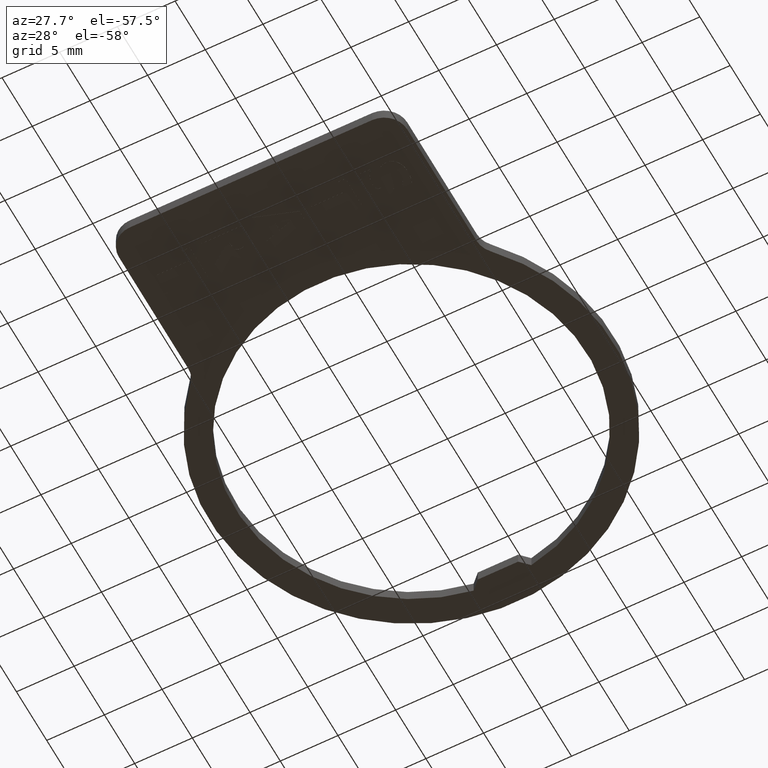
[diagram: clean part render]
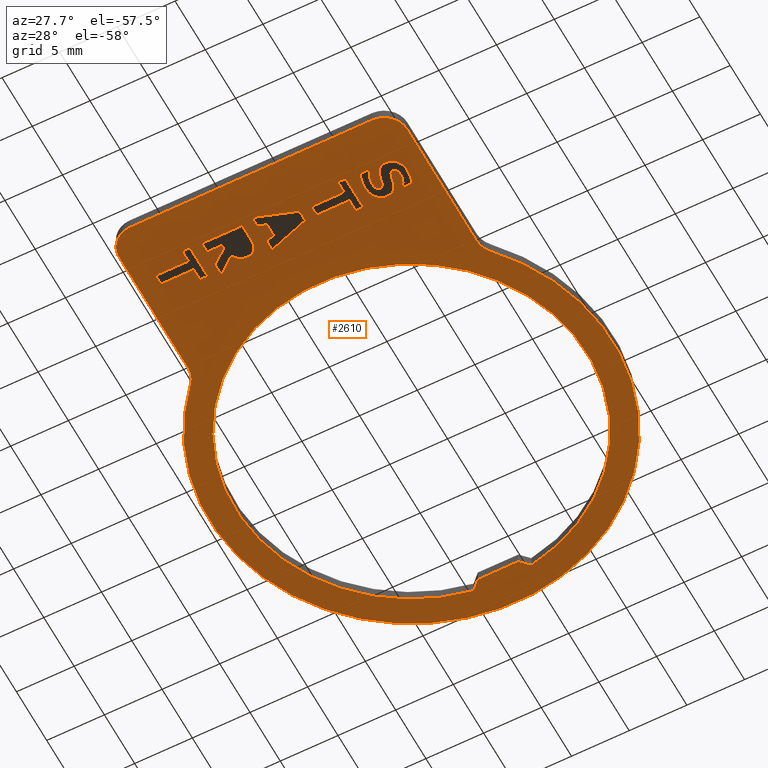
[diagram: same view with one face highlighted and labeled with its STEP entity id]
A machine part, auxiliary view. The second image highlights one B-rep face of the part: STEP entity #2610.
In plain terms, the highlighted planar face has unit normal (0, 0, 1).
Its self-contained STEP definition (entity closure, byte-faithful):
#381=CARTESIAN_POINT('',(-10.179624176161926,-19.040604035403977,0.0));
#382=VERTEX_POINT('',#381);
#389=CARTESIAN_POINT('',(-13.679624116557282,-19.040604035403977,0.0));
#390=VERTEX_POINT('',#389);
#391=CARTESIAN_POINT('',(-13.679624116557282,-19.040604035403977,0.0));
#392=DIRECTION('',(1.0,0.0,0.0));
#393=VECTOR('',#392,3.499999940395355);
#394=LINE('',#391,#393);
#395=EDGE_CURVE('',#390,#382,#394,.T.);
#412=CARTESIAN_POINT('',(-10.179624176161928,-17.633796928081370,0.0));
#413=VERTEX_POINT('',#412);
#420=CARTESIAN_POINT('',(-10.179624176161926,-19.040604035403977,0.0));
#421=DIRECTION('',(0.0,1.0,0.0));
#422=VECTOR('',#421,1.406807107322607);
#423=LINE('',#420,#422);
#424=EDGE_CURVE('',#382,#413,#423,.T.);
#440=CARTESIAN_POINT('',(-10.366820283184692,-16.726179439486138,0.0));
#441=VERTEX_POINT('',#440);
#448=CARTESIAN_POINT('',(-10.179624176161928,-17.633796928081370,0.0));
#449=CARTESIAN_POINT('',(-10.179624176161928,-17.341657548939779,0.0));
#450=CARTESIAN_POINT('',(-10.253368097110290,-16.910539241857045,0.0));
#451=CARTESIAN_POINT('',(-10.366820283184694,-16.726179439486138,0.0));
#452=QUASI_UNIFORM_CURVE('',2,(#448,#449,#450,#451),.UNSPECIFIED.,.F.,.U.);
#453=EDGE_CURVE('',#413,#441,#452,.T.);
#469=CARTESIAN_POINT('',(-11.141131453142496,-16.317751569618288,0.0));
#470=VERTEX_POINT('',#469);
#477=CARTESIAN_POINT('',(-10.366820283184694,-16.726179439486138,0.0));
#478=CARTESIAN_POINT('',(-10.485945078562818,-16.538983332463374,0.0));
#479=CARTESIAN_POINT('',(-10.857500987956490,-16.317751569618288,0.0));
#480=CARTESIAN_POINT('',(-11.141131453142499,-16.317751569618288,0.0));
#481=QUASI_UNIFORM_CURVE('',2,(#477,#478,#479,#480),.UNSPECIFIED.,.F.,.U.);
#482=EDGE_CURVE('',#441,#470,#481,.T.);
#498=CARTESIAN_POINT('',(-12.190564174330731,-16.984283162805408,0.0));
#499=VERTEX_POINT('',#498);
#506=CARTESIAN_POINT('',(-11.141131453142499,-16.317751569618288,0.0));
#507=CARTESIAN_POINT('',(-11.541050409054773,-16.317751569618288,0.0));
#508=CARTESIAN_POINT('',(-12.043076332434008,-16.680798565056378,0.0));
#509=CARTESIAN_POINT('',(-12.190564174330733,-16.984283162805408,0.0));
#510=QUASI_UNIFORM_CURVE('',2,(#506,#507,#508,#509),.UNSPECIFIED.,.F.,.U.);
#511=EDGE_CURVE('',#470,#499,#510,.T.);
#523=CARTESIAN_POINT('',(-13.679624116557283,-15.807216732283468,0.0));
#524=VERTEX_POINT('',#523);
#531=CARTESIAN_POINT('',(-12.190564174330731,-16.984283162805408,0.0));
#532=DIRECTION('',(-0.784500119596252,0.620128665966561,0.0));
#533=VECTOR('',#532,1.898100338076310);
#534=LINE('',#531,#533);
#535=EDGE_CURVE('',#499,#524,#534,.T.);
#613=CARTESIAN_POINT('',(-13.679624116557282,-18.167022202631067,0.0));
#614=VERTEX_POINT('',#613);
#615=CARTESIAN_POINT('',(-13.679624116557282,-18.167022202631067,0.0));
#616=DIRECTION('',(0.0,-1.0,0.0));
#617=VECTOR('',#616,0.873581832772910);
#618=LINE('',#615,#617);
#619=EDGE_CURVE('',#614,#390,#618,.T.);
#637=CARTESIAN_POINT('',(-12.394778109264660,-18.167022202631067,0.0));
#638=VERTEX_POINT('',#637);
#639=CARTESIAN_POINT('',(-12.394778109264660,-18.167022202631067,0.0));
#640=DIRECTION('',(-1.0,0.0,0.0));
#641=VECTOR('',#640,1.284846007292622);
#642=LINE('',#639,#641);
#643=EDGE_CURVE('',#638,#614,#642,.T.);
#661=CARTESIAN_POINT('',(-12.394778109264662,-17.849356081622737,0.0));
#662=VERTEX_POINT('',#661);
#663=CARTESIAN_POINT('',(-12.394778109264662,-17.849356081622737,0.0));
#664=DIRECTION('',(0.0,-1.0,0.0));
#665=VECTOR('',#664,0.317666121008330);
#666=LINE('',#663,#665);
#667=EDGE_CURVE('',#662,#638,#666,.T.);
#685=CARTESIAN_POINT('',(-13.679624116557283,-16.876503586034726,0.0));
#686=VERTEX_POINT('',#685);
#687=CARTESIAN_POINT('',(-13.679624116557283,-16.876503586034726,0.0));
#688=DIRECTION('',(0.797246141356458,-0.603654363102130,0.0));
#689=VECTOR('',#688,1.611605175167793);
#690=LINE('',#687,#689);
#691=EDGE_CURVE('',#686,#662,#690,.T.);
#709=CARTESIAN_POINT('',(-13.679624116557283,-15.807216732283468,0.0));
#710=DIRECTION('',(0.0,-1.0,0.0));
#711=VECTOR('',#710,1.069286853751258);
#712=LINE('',#709,#711);
#713=EDGE_CURVE('',#524,#686,#712,.T.);
#797=CARTESIAN_POINT('',(-1.846156007767628,-16.181608999702689,0.0));
#798=VERTEX_POINT('',#797);
#805=CARTESIAN_POINT('',(-1.179624414580507,-16.181608999702689,0.0));
#806=VERTEX_POINT('',#805);
#807=CARTESIAN_POINT('',(-1.179624414580507,-16.181608999702689,0.0));
#808=DIRECTION('',(-1.0,0.0,0.0));
#809=VECTOR('',#808,0.666531593187121);
#810=LINE('',#807,#809);
#811=EDGE_CURVE('',#806,#798,#810,.T.);
#828=CARTESIAN_POINT('',(-1.846156007767628,-17.216860197631625,0.0));
#829=VERTEX_POINT('',#828);
#836=CARTESIAN_POINT('',(-1.846156007767628,-16.181608999702689,0.0));
#837=DIRECTION('',(0.0,-1.0,0.0));
#838=VECTOR('',#837,1.035251197928936);
#839=LINE('',#836,#838);
#840=EDGE_CURVE('',#798,#829,#839,.T.);
#852=CARTESIAN_POINT('',(-4.679624354975863,-17.216860197631625,0.0));
#853=VERTEX_POINT('',#852);
#860=CARTESIAN_POINT('',(-1.846156007767628,-17.216860197631625,0.0));
#861=DIRECTION('',(-1.0,0.0,0.0));
#862=VECTOR('',#861,2.833468347208235);
#863=LINE('',#860,#862);
#864=EDGE_CURVE('',#829,#853,#863,.T.);
#876=CARTESIAN_POINT('',(-4.679624354975863,-18.096114639708254,0.0));
#877=VERTEX_POINT('',#876);
#884=CARTESIAN_POINT('',(-4.679624354975863,-17.216860197631625,0.0));
#885=DIRECTION('',(0.0,-1.0,0.0));
#886=VECTOR('',#885,0.879254442076629);
#887=LINE('',#884,#886);
#888=EDGE_CURVE('',#853,#877,#887,.T.);
#901=CARTESIAN_POINT('',(-1.179624414580505,-19.131365837637190,0.0));
#902=VERTEX_POINT('',#901);
#903=CARTESIAN_POINT('',(-1.179624414580505,-19.131365837637190,0.0));
#904=DIRECTION('',(0.0,1.0,0.0));
#905=VECTOR('',#904,2.949756837934501);
#906=LINE('',#903,#905);
#907=EDGE_CURVE('',#902,#806,#906,.T.);
#925=CARTESIAN_POINT('',(-1.846156007767625,-19.131365837637190,0.0));
#926=VERTEX_POINT('',#925);
#927=CARTESIAN_POINT('',(-1.846156007767625,-19.131365837637190,0.0));
#928=DIRECTION('',(1.0,0.0,0.0));
#929=VECTOR('',#928,0.666531593187121);
#930=LINE('',#927,#929);
#931=EDGE_CURVE('',#926,#902,#930,.T.);
#949=CARTESIAN_POINT('',(-1.846156007767628,-18.096114639708254,0.0));
#950=VERTEX_POINT('',#949);
#951=CARTESIAN_POINT('',(-1.846156007767628,-18.096114639708254,0.0));
#952=DIRECTION('',(0.0,-1.0,0.0));
#953=VECTOR('',#952,1.035251197928936);
#954=LINE('',#951,#953);
#955=EDGE_CURVE('',#950,#926,#954,.T.);
#973=CARTESIAN_POINT('',(-4.679624354975863,-18.096114639708254,0.0));
#974=DIRECTION('',(1.0,0.0,0.0));
#975=VECTOR('',#974,2.833468347208235);
#976=LINE('',#973,#975);
#977=EDGE_CURVE('',#877,#950,#976,.T.);
#998=CARTESIAN_POINT('',(-5.679624295371212,-18.150004456591766,0.0));
#999=VERTEX_POINT('',#998);
#1006=CARTESIAN_POINT('',(-9.179624235766568,-19.332743496417425,0.0));
#1007=VERTEX_POINT('',#1006);
#1008=CARTESIAN_POINT('',(-9.179624235766568,-19.332743496417425,0.0));
#1009=DIRECTION('',(0.947370089290162,0.320140459670987,0.0));
#1010=VECTOR('',#1009,3.694437875928517);
#1011=LINE('',#1008,#1010);
#1012=EDGE_CURVE('',#1007,#999,#1011,.T.);
#1036=CARTESIAN_POINT('',(-5.679624295371212,-17.191333484263055,0.0));
#1037=VERTEX_POINT('',#1036);
#1044=CARTESIAN_POINT('',(-5.679624295371212,-18.150004456591766,0.0));
#1045=DIRECTION('',(0.0,1.0,0.0));
#1046=VECTOR('',#1045,0.958670972328711);
#1047=LINE('',#1044,#1046);
#1048=EDGE_CURVE('',#999,#1037,#1047,.T.);
#1067=CARTESIAN_POINT('',(-9.179624235766568,-16.008594444437396,0.0));
#1068=VERTEX_POINT('',#1067);
#1075=CARTESIAN_POINT('',(-5.679624295371212,-17.191333484263055,0.0));
#1076=DIRECTION('',(-0.947370089290162,0.320140459670987,0.0));
#1077=VECTOR('',#1076,3.694437875928517);
#1078=LINE('',#1075,#1077);
#1079=EDGE_CURVE('',#1037,#1068,#1078,.T.);
#1098=CARTESIAN_POINT('',(-9.179624235766568,-16.913375628380763,0.0));
#1099=VERTEX_POINT('',#1098);
#1106=CARTESIAN_POINT('',(-9.179624235766568,-16.008594444437396,0.0));
#1107=DIRECTION('',(0.0,-1.0,0.0));
#1108=VECTOR('',#1107,0.904781183943367);
#1109=LINE('',#1106,#1108);
#1110=EDGE_CURVE('',#1068,#1099,#1109,.T.);
#1170=CARTESIAN_POINT('',(-9.179624235766568,-18.453489054340796,0.0));
#1171=VERTEX_POINT('',#1170);
#1172=CARTESIAN_POINT('',(-9.179624235766568,-18.453489054340796,0.0));
#1173=DIRECTION('',(0.0,-1.0,0.0));
#1174=VECTOR('',#1173,0.879254442076629);
#1175=LINE('',#1172,#1174);
#1176=EDGE_CURVE('',#1171,#1007,#1175,.T.);
#1201=CARTESIAN_POINT('',(-8.464875463497826,-18.232257291495706,0.0));
#1202=VERTEX_POINT('',#1201);
#1203=CARTESIAN_POINT('',(-8.464875463497826,-18.232257291495706,0.0));
#1204=DIRECTION('',(-0.955285890691345,-0.295683728071135,0.0));
#1205=VECTOR('',#1204,0.748204049943075);
#1206=LINE('',#1203,#1205);
#1207=EDGE_CURVE('',#1202,#1171,#1206,.T.);
#1232=CARTESIAN_POINT('',(-8.464875463497826,-17.131771086573991,0.0));
#1233=VERTEX_POINT('',#1232);
#1234=CARTESIAN_POINT('',(-8.464875463497826,-17.131771086573991,0.0));
#1235=DIRECTION('',(0.0,-1.0,0.0));
#1236=VECTOR('',#1235,1.100486204921715);
#1237=LINE('',#1234,#1236);
#1238=EDGE_CURVE('',#1233,#1202,#1237,.T.);
#1261=CARTESIAN_POINT('',(-9.179624235766568,-16.913375628380763,0.0));
#1262=DIRECTION('',(0.956351571051338,-0.292218535599022,0.0));
#1263=VECTOR('',#1262,0.747370312240929);
#1264=LINE('',#1261,#1263);
#1265=EDGE_CURVE('',#1099,#1233,#1264,.T.);
#1609=CARTESIAN_POINT('',(3.147360882446741,-16.358878029938268,0.0));
#1610=VERTEX_POINT('',#1609);
#1617=CARTESIAN_POINT('',(3.382774168551128,-17.533108155808350,0.0));
#1618=VERTEX_POINT('',#1617);
#1619=CARTESIAN_POINT('',(3.382774168551128,-17.533108155808346,0.0));
#1620=CARTESIAN_POINT('',(3.382774168551128,-17.221114644103736,0.0));
#1621=CARTESIAN_POINT('',(3.255140459217425,-16.602800229998238,0.0));
#1622=CARTESIAN_POINT('',(3.147360882446741,-16.358878029938268,0.0));
#1623=QUASI_UNIFORM_CURVE('',2,(#1619,#1620,#1621,#1622),.UNSPECIFIED.,.F.,.U.);
#1624=EDGE_CURVE('',#1618,#1610,#1623,.T.);
#1641=CARTESIAN_POINT('',(2.347522970622193,-16.358878029938268,0.0));
#1642=VERTEX_POINT('',#1641);
#1649=CARTESIAN_POINT('',(3.147360882446741,-16.358878029938268,0.0));
#1650=DIRECTION('',(-1.0,0.0,0.0));
#1651=VECTOR('',#1650,0.799837911824548);
#1652=LINE('',#1649,#1651);
#1653=EDGE_CURVE('',#1610,#1642,#1652,.T.);
#1665=CARTESIAN_POINT('',(2.347522970622193,-16.435458255538489,0.0));
#1666=VERTEX_POINT('',#1665);
#1673=CARTESIAN_POINT('',(2.347522970622193,-16.358878029938268,0.0));
#1674=DIRECTION('',(0.0,-1.0,0.0));
#1675=VECTOR('',#1674,0.076580225600221);
#1676=LINE('',#1673,#1675);
#1677=EDGE_CURVE('',#1642,#1666,#1676,.T.);
#1693=CARTESIAN_POINT('',(2.744605621882608,-17.487727281378586,0.0));
#1694=VERTEX_POINT('',#1693);
#1701=CARTESIAN_POINT('',(2.347522970622193,-16.435458255538489,0.0));
#1702=CARTESIAN_POINT('',(2.514864945081938,-16.631163276516837,0.0));
#1703=CARTESIAN_POINT('',(2.744605621882608,-17.192751597585133,0.0));
#1704=CARTESIAN_POINT('',(2.744605621882608,-17.487727281378586,0.0));
#1705=QUASI_UNIFORM_CURVE('',2,(#1701,#1702,#1703,#1704),.UNSPECIFIED.,.F.,.U.);
#1706=EDGE_CURVE('',#1666,#1694,#1705,.T.);
#1722=CARTESIAN_POINT('',(2.665189091630524,-17.887646237290859,0.0));
#1723=VERTEX_POINT('',#1722);
#1730=CARTESIAN_POINT('',(2.744605621882608,-17.487727281378586,0.0));
#1731=CARTESIAN_POINT('',(2.744605621882608,-17.604015772104848,0.0));
#1732=CARTESIAN_POINT('',(2.710569966060286,-17.785539269823893,0.0));
#1733=CARTESIAN_POINT('',(2.665189091630524,-17.887646237290859,0.0));
#1734=QUASI_UNIFORM_CURVE('',2,(#1730,#1731,#1732,#1733),.UNSPECIFIED.,.F.,.U.);
#1735=EDGE_CURVE('',#1694,#1723,#1734,.T.);
#1751=CARTESIAN_POINT('',(2.390067540400096,-18.089023867572923,0.0));
#1752=VERTEX_POINT('',#1751);
#1759=CARTESIAN_POINT('',(2.665189091630524,-17.887646237290859,0.0));
#1760=CARTESIAN_POINT('',(2.628317131156344,-17.969899072194799,0.0));
#1761=CARTESIAN_POINT('',(2.480829289259618,-18.089023867572923,0.0));
#1762=CARTESIAN_POINT('',(2.390067540400096,-18.089023867572923,0.0));
#1763=QUASI_UNIFORM_CURVE('',2,(#1759,#1760,#1761,#1762),.UNSPECIFIED.,.F.,.U.);
#1764=EDGE_CURVE('',#1723,#1752,#1763,.T.);
#1780=CARTESIAN_POINT('',(2.035529458917585,-17.626706209319732,0.0));
#1781=VERTEX_POINT('',#1780);
#1788=CARTESIAN_POINT('',(2.390067540400096,-18.089023867572923,0.0));
#1789=CARTESIAN_POINT('',(2.253924917110810,-18.089023867572923,0.0));
#1790=CARTESIAN_POINT('',(2.097928161258507,-17.898991455898297,0.0));
#1791=CARTESIAN_POINT('',(2.035529458917584,-17.626706209319728,0.0));
#1792=QUASI_UNIFORM_CURVE('',2,(#1788,#1789,#1790,#1791),.UNSPECIFIED.,.F.,.U.);
#1793=EDGE_CURVE('',#1752,#1781,#1792,.T.);
#1809=CARTESIAN_POINT('',(1.854005961198537,-16.937484178917725,0.0));
#1810=VERTEX_POINT('',#1809);
#1817=CARTESIAN_POINT('',(2.035529458917584,-17.626706209319728,0.0));
#1818=CARTESIAN_POINT('',(1.995821193791543,-17.450855320904402,0.0));
#1819=CARTESIAN_POINT('',(1.919240968191320,-17.124680285940492,0.0));
#1820=CARTESIAN_POINT('',(1.854005961198537,-16.937484178917725,0.0));
#1821=QUASI_UNIFORM_CURVE('',2,(#1817,#1818,#1819,#1820),.UNSPECIFIED.,.F.,.U.);
#1822=EDGE_CURVE('',#1781,#1810,#1821,.T.);
#1838=CARTESIAN_POINT('',(0.915189121432847,-16.219899101997122,0.0));
#1839=VERTEX_POINT('',#1838);
#1846=CARTESIAN_POINT('',(1.854005961198537,-16.937484178917725,0.0));
#1847=CARTESIAN_POINT('',(1.720699642561114,-16.574437183479635,0.0));
#1848=CARTESIAN_POINT('',(1.278236116870939,-16.219899101997122,0.0));
#1849=CARTESIAN_POINT('',(0.915189121432847,-16.219899101997122,0.0));
#1850=QUASI_UNIFORM_CURVE('',2,(#1846,#1847,#1848,#1849),.UNSPECIFIED.,.F.,.U.);
#1851=EDGE_CURVE('',#1810,#1839,#1850,.T.);
#1867=CARTESIAN_POINT('',(-0.242023176526072,-17.737322090742275,0.0));
#1868=VERTEX_POINT('',#1867);
#1875=CARTESIAN_POINT('',(0.915189121432847,-16.219899101997122,0.0));
#1876=CARTESIAN_POINT('',(0.393309065490590,-16.219899101997122,0.0));
#1877=CARTESIAN_POINT('',(-0.242023176526072,-17.039591146384691,0.0));
#1878=CARTESIAN_POINT('',(-0.242023176526072,-17.737322090742275,0.0));
#1879=QUASI_UNIFORM_CURVE('',2,(#1875,#1876,#1877,#1878),.UNSPECIFIED.,.F.,.U.);
#1880=EDGE_CURVE('',#1839,#1868,#1879,.T.);
#1897=CARTESIAN_POINT('',(2.282287963629412,-18.988132442212574,0.0));
#1898=VERTEX_POINT('',#1897);
#1899=CARTESIAN_POINT('',(2.282287963629412,-18.988132442212574,0.0));
#1900=CARTESIAN_POINT('',(2.772968668401208,-18.988132442212574,0.0));
#1901=CARTESIAN_POINT('',(3.382774168551128,-18.157095179217567,0.0));
#1902=CARTESIAN_POINT('',(3.382774168551128,-17.533108155808346,0.0));
#1903=QUASI_UNIFORM_CURVE('',2,(#1899,#1900,#1901,#1902),.UNSPECIFIED.,.F.,.U.);
#1904=EDGE_CURVE('',#1898,#1618,#1903,.T.);
#1926=CARTESIAN_POINT('',(1.292417640130239,-18.230839100165927,0.0));
#1927=VERTEX_POINT('',#1926);
#1928=CARTESIAN_POINT('',(1.292417640130239,-18.230839100165927,0.0));
#1929=CARTESIAN_POINT('',(1.434232872723245,-18.636430665381923,0.0));
#1930=CARTESIAN_POINT('',(1.919240968191320,-18.988132442212574,0.0));
#1931=CARTESIAN_POINT('',(2.282287963629412,-18.988132442212574,0.0));
#1932=QUASI_UNIFORM_CURVE('',2,(#1928,#1929,#1930,#1931),.UNSPECIFIED.,.F.,.U.);
#1933=EDGE_CURVE('',#1927,#1898,#1932,.T.);
#1955=CARTESIAN_POINT('',(1.099548923803753,-17.467873148815563,0.0));
#1956=VERTEX_POINT('',#1955);
#1957=CARTESIAN_POINT('',(1.099548923803753,-17.467873148815563,0.0));
#1958=CARTESIAN_POINT('',(1.147766102885375,-17.646560341882747,0.0));
#1959=CARTESIAN_POINT('',(1.230018937789317,-18.052151907098743,0.0));
#1960=CARTESIAN_POINT('',(1.292417640130239,-18.230839100165927,0.0));
#1961=QUASI_UNIFORM_CURVE('',2,(#1957,#1958,#1959,#1960),.UNSPECIFIED.,.F.,.U.);
#1962=EDGE_CURVE('',#1956,#1927,#1961,.T.);
#1984=CARTESIAN_POINT('',(0.764864974884261,-17.119007676636773,0.0));
#1985=VERTEX_POINT('',#1984);
#1986=CARTESIAN_POINT('',(0.764864974884261,-17.119007676636773,0.0));
#1987=CARTESIAN_POINT('',(0.898171293521686,-17.119007676636773,0.0));
#1988=CARTESIAN_POINT('',(1.062676963329572,-17.326057916222560,0.0));
#1989=CARTESIAN_POINT('',(1.099548923803753,-17.467873148815563,0.0));
#1990=QUASI_UNIFORM_CURVE('',2,(#1986,#1987,#1988,#1989),.UNSPECIFIED.,.F.,.U.);
#1991=EDGE_CURVE('',#1985,#1956,#1990,.T.);
#2013=CARTESIAN_POINT('',(0.464216681787093,-17.337403134830002,0.0));
#2014=VERTEX_POINT('',#2013);
#2015=CARTESIAN_POINT('',(0.464216681787093,-17.337403134830002,0.0));
#2016=CARTESIAN_POINT('',(0.503924946913132,-17.246641385970477,0.0));
#2017=CARTESIAN_POINT('',(0.648576484157999,-17.119007676636773,0.0));
#2018=CARTESIAN_POINT('',(0.764864974884261,-17.119007676636773,0.0));
#2019=QUASI_UNIFORM_CURVE('',2,(#2015,#2016,#2017,#2018),.UNSPECIFIED.,.F.,.U.);
#2020=EDGE_CURVE('',#2014,#1985,#2019,.T.);
#2042=CARTESIAN_POINT('',(0.396145370142449,-17.734485786090413,0.0));
#2043=VERTEX_POINT('',#2042);
#2044=CARTESIAN_POINT('',(0.396145370142449,-17.734485786090413,0.0));
#2045=CARTESIAN_POINT('',(0.396145370142449,-17.657905560490189,0.0));
#2046=CARTESIAN_POINT('',(0.430181025964771,-17.411147055778361,0.0));
#2047=CARTESIAN_POINT('',(0.464216681787093,-17.337403134830002,0.0));
#2048=QUASI_UNIFORM_CURVE('',2,(#2044,#2045,#2046,#2047),.UNSPECIFIED.,.F.,.U.);
#2049=EDGE_CURVE('',#2043,#2014,#2048,.T.);
#2071=CARTESIAN_POINT('',(0.861299333047505,-18.928570044523511,0.0));
#2072=VERTEX_POINT('',#2071);
#2073=CARTESIAN_POINT('',(0.861299333047505,-18.928570044523511,0.0));
#2074=CARTESIAN_POINT('',(0.637231265550557,-18.664793711900522,0.0));
#2075=CARTESIAN_POINT('',(0.396145370142449,-18.032297774535721,0.0));
#2076=CARTESIAN_POINT('',(0.396145370142449,-17.734485786090413,0.0));
#2077=QUASI_UNIFORM_CURVE('',2,(#2073,#2074,#2075,#2076),.UNSPECIFIED.,.F.,.U.);
#2078=EDGE_CURVE('',#2072,#2043,#2077,.T.);
#2096=CARTESIAN_POINT('',(0.861299333047505,-19.007986574775593,0.0));
#2097=VERTEX_POINT('',#2096);
#2098=CARTESIAN_POINT('',(0.861299333047505,-19.007986574775593,0.0));
#2099=DIRECTION('',(0.0,1.0,0.0));
#2100=VECTOR('',#2099,0.079416530252082);
#2101=LINE('',#2098,#2100);
#2102=EDGE_CURVE('',#2097,#2072,#2101,.T.);
#2120=CARTESIAN_POINT('',(0.027425765400637,-19.007986574775593,0.0));
#2121=VERTEX_POINT('',#2120);
#2122=CARTESIAN_POINT('',(0.027425765400637,-19.007986574775593,0.0));
#2123=DIRECTION('',(1.0,0.0,0.0));
#2124=VECTOR('',#2123,0.833873567646868);
#2125=LINE('',#2122,#2124);
#2126=EDGE_CURVE('',#2121,#2097,#2125,.T.);
#2148=CARTESIAN_POINT('',(-0.242023176526072,-17.737322090742275,0.0));
#2149=CARTESIAN_POINT('',(-0.242023176526072,-18.140077351306406,0.0));
#2150=CARTESIAN_POINT('',(-0.086026420673766,-18.747046546804466,0.0));
#2151=CARTESIAN_POINT('',(0.027425765400637,-19.007986574775593,0.0));
#2152=QUASI_UNIFORM_CURVE('',2,(#2148,#2149,#2150,#2151),.UNSPECIFIED.,.F.,.U.);
#2153=EDGE_CURVE('',#1868,#2121,#2152,.T.);
#2174=CARTESIAN_POINT('',(-15.346155650139757,-18.096114639708254,0.0));
#2175=VERTEX_POINT('',#2174);
#2182=CARTESIAN_POINT('',(-18.179623997347992,-18.096114639708254,0.0));
#2183=VERTEX_POINT('',#2182);
#2184=CARTESIAN_POINT('',(-18.179623997347992,-18.096114639708254,0.0));
#2185=DIRECTION('',(1.0,0.0,0.0));
#2186=VECTOR('',#2185,2.833468347208235);
#2187=LINE('',#2184,#2186);
#2188=EDGE_CURVE('',#2183,#2175,#2187,.T.);
#2212=CARTESIAN_POINT('',(-15.346155650139757,-19.131365837637190,0.0));
#2213=VERTEX_POINT('',#2212);
#2220=CARTESIAN_POINT('',(-15.346155650139757,-18.096114639708254,0.0));
#2221=DIRECTION('',(0.0,-1.0,0.0));
#2222=VECTOR('',#2221,1.035251197928936);
#2223=LINE('',#2220,#2222);
#2224=EDGE_CURVE('',#2175,#2213,#2223,.T.);
#2243=CARTESIAN_POINT('',(-14.679624056952637,-19.131365837637190,0.0));
#2244=VERTEX_POINT('',#2243);
#2251=CARTESIAN_POINT('',(-15.346155650139757,-19.131365837637190,0.0));
#2252=DIRECTION('',(1.0,0.0,0.0));
#2253=VECTOR('',#2252,0.666531593187120);
#2254=LINE('',#2251,#2253);
#2255=EDGE_CURVE('',#2213,#2244,#2254,.T.);
#2274=CARTESIAN_POINT('',(-14.679624056952637,-16.181608999702689,0.0));
#2275=VERTEX_POINT('',#2274);
#2282=CARTESIAN_POINT('',(-14.679624056952637,-19.131365837637190,0.0));
#2283=DIRECTION('',(0.0,1.0,0.0));
#2284=VECTOR('',#2283,2.949756837934501);
#2285=LINE('',#2282,#2284);
#2286=EDGE_CURVE('',#2244,#2275,#2285,.T.);
#2306=CARTESIAN_POINT('',(-18.179623997347992,-17.216860197631625,0.0));
#2307=VERTEX_POINT('',#2306);
#2308=CARTESIAN_POINT('',(-18.179623997347992,-17.216860197631625,0.0));
#2309=DIRECTION('',(0.0,-1.0,0.0));
#2310=VECTOR('',#2309,0.879254442076629);
#2311=LINE('',#2308,#2310);
#2312=EDGE_CURVE('',#2307,#2183,#2311,.T.);
#2337=CARTESIAN_POINT('',(-15.346155650139757,-17.216860197631625,0.0));
#2338=VERTEX_POINT('',#2337);
#2339=CARTESIAN_POINT('',(-15.346155650139757,-17.216860197631625,0.0));
#2340=DIRECTION('',(-1.0,0.0,0.0));
#2341=VECTOR('',#2340,2.833468347208235);
#2342=LINE('',#2339,#2341);
#2343=EDGE_CURVE('',#2338,#2307,#2342,.T.);
#2368=CARTESIAN_POINT('',(-15.346155650139757,-16.181608999702689,0.0));
#2369=VERTEX_POINT('',#2368);
#2370=CARTESIAN_POINT('',(-15.346155650139757,-16.181608999702689,0.0));
#2371=DIRECTION('',(0.0,-1.0,0.0));
#2372=VECTOR('',#2371,1.035251197928936);
#2373=LINE('',#2370,#2372);
#2374=EDGE_CURVE('',#2369,#2338,#2373,.T.);
#2397=CARTESIAN_POINT('',(-14.679624056952637,-16.181608999702689,0.0));
#2398=DIRECTION('',(-1.0,0.0,0.0));
#2399=VECTOR('',#2398,0.666531593187120);
#2400=LINE('',#2397,#2399);
#2401=EDGE_CURVE('',#2275,#2369,#2400,.T.);
#2434=CARTESIAN_POINT('',(-7.398424810307674,-2.851746310758943,0.0));
#2435=DIRECTION('',(0.0,0.0,1.0));
#2436=DIRECTION('',(1.0,0.0,0.0));
#2437=AXIS2_PLACEMENT_3D('',#2434,#2435,#2436);
#2438=PLANE('',#2437);
#2439=CARTESIAN_POINT('',(-17.898424810307670,-22.893851612925708,0.0));
#2440=VERTEX_POINT('',#2439);
#2441=CARTESIAN_POINT('',(-19.898424810307670,-20.893851612925708,0.0));
#2442=VERTEX_POINT('',#2441);
#2443=CARTESIAN_POINT('',(-17.898424810307670,-20.893851612925708,0.0));
#2444=DIRECTION('',(0.0,0.0,-1.0));
#2445=DIRECTION('',(1.0,0.0,0.0));
#2446=AXIS2_PLACEMENT_3D('',#2443,#2444,#2445);
#2447=CIRCLE('',#2446,1.999999999999997);
#2448=EDGE_CURVE('',#2440,#2442,#2447,.T.);
#2449=ORIENTED_EDGE('',*,*,#2448,.T.);
#2450=CARTESIAN_POINT('',(-19.898424810307670,-9.432256423331003,0.0));
#2451=VERTEX_POINT('',#2450);
#2452=CARTESIAN_POINT('',(-19.898424810307670,-20.893851612925708,0.0));
#2453=DIRECTION('',(0.0,1.0,0.0));
#2454=VECTOR('',#2453,11.461595189594705);
#2455=LINE('',#2452,#2454);
#2456=EDGE_CURVE('',#2442,#2451,#2455,.T.);
#2457=ORIENTED_EDGE('',*,*,#2456,.T.);
#2458=CARTESIAN_POINT('',(-20.411245323128185,-8.094984135084308,0.0));
#2459=VERTEX_POINT('',#2458);
#2460=CARTESIAN_POINT('',(-21.898424810307667,-9.432256423331003,0.0));
#2461=DIRECTION('',(0.0,0.0,1.0));
#2462=DIRECTION('',(1.0,0.0,0.0));
#2463=AXIS2_PLACEMENT_3D('',#2460,#2461,#2462);
#2464=CIRCLE('',#2463,2.000000000000042);
#2465=EDGE_CURVE('',#2451,#2459,#2464,.T.);
#2466=ORIENTED_EDGE('',*,*,#2465,.T.);
#2467=CARTESIAN_POINT('',(5.614395702512835,-8.094984135084314,0.0));
#2468=VERTEX_POINT('',#2467);
#2469=CARTESIAN_POINT('',(-7.398424810307668,3.606148387074293,0.0));
#2470=DIRECTION('',(0.0,0.0,-1.0));
#2471=DIRECTION('',(-0.743589743589743,0.668636144123349,0.0));
#2472=AXIS2_PLACEMENT_3D('',#2469,#2470,#2471);
#2473=CIRCLE('',#2472,17.500000000000004);
#2474=EDGE_CURVE('',#2459,#2468,#2473,.T.);
#2475=ORIENTED_EDGE('',*,*,#2474,.T.);
#2476=CARTESIAN_POINT('',(5.101575189692324,-9.432256423331014,0.0));
#2477=VERTEX_POINT('',#2476);
#2478=CARTESIAN_POINT('',(7.101575189692322,-9.432256423331012,0.0));
#2479=DIRECTION('',(0.0,0.0,1.000000000000000));
#2480=DIRECTION('',(-0.743589743589743,0.668636144123349,0.0));
#2481=AXIS2_PLACEMENT_3D('',#2478,#2479,#2480);
#2482=CIRCLE('',#2481,1.999999999999971);
#2483=EDGE_CURVE('',#2468,#2477,#2482,.T.);
#2484=ORIENTED_EDGE('',*,*,#2483,.T.);
#2485=CARTESIAN_POINT('',(5.101575189692328,-20.893851612925705,0.0));
#2486=VERTEX_POINT('',#2485);
#2487=CARTESIAN_POINT('',(5.101575189692324,-9.432256423331014,0.0));
#2488=DIRECTION('',(0.0,-1.0,0.0));
#2489=VECTOR('',#2488,11.461595189594691);
#2490=LINE('',#2487,#2489);
#2491=EDGE_CURVE('',#2477,#2486,#2490,.T.);
#2492=ORIENTED_EDGE('',*,*,#2491,.T.);
#2493=CARTESIAN_POINT('',(3.101575189692329,-22.893851612925708,0.0));
#2494=VERTEX_POINT('',#2493);
#2495=CARTESIAN_POINT('',(3.101575189692329,-20.893851612925705,0.0));
#2496=DIRECTION('',(0.0,0.0,-1.0));
#2497=DIRECTION('',(0.0,1.0,0.0));
#2498=AXIS2_PLACEMENT_3D('',#2495,#2496,#2497);
#2499=CIRCLE('',#2498,2.000000000000004);
#2500=EDGE_CURVE('',#2486,#2494,#2499,.T.);
#2501=ORIENTED_EDGE('',*,*,#2500,.T.);
#2502=CARTESIAN_POINT('',(3.101575189692329,-22.893851612925708,0.0));
#2503=DIRECTION('',(-1.0,0.0,0.0));
#2504=VECTOR('',#2503,21.0);
#2505=LINE('',#2502,#2504);
#2506=EDGE_CURVE('',#2494,#2440,#2505,.T.);
#2507=ORIENTED_EDGE('',*,*,#2506,.T.);
#2508=EDGE_LOOP('',(#2449,#2457,#2466,#2475,#2484,#2492,#2501,#2507));
#2509=FACE_OUTER_BOUND('',#2508,.T.);
#2510=CARTESIAN_POINT('',(-9.148424810307672,17.899834770404681,0.0));
#2511=VERTEX_POINT('',#2510);
#2512=CARTESIAN_POINT('',(-9.898424810307674,18.649834770404677,0.0));
#2513=VERTEX_POINT('',#2512);
#2514=CARTESIAN_POINT('',(-9.148424810307672,17.899834770404681,0.0));
#2515=DIRECTION('',(-0.707106781186550,0.707106781186545,0.0));
#2516=VECTOR('',#2515,1.060660171779820);
#2517=LINE('',#2514,#2516);
#2518=EDGE_CURVE('',#2511,#2513,#2517,.T.);
#2519=ORIENTED_EDGE('',*,*,#2518,.T.);
#2520=CARTESIAN_POINT('',(-4.898424810307673,18.649834770404681,0.0));
#2521=VERTEX_POINT('',#2520);
#2522=CARTESIAN_POINT('',(-7.398424810307668,3.606148387074293,0.0));
#2523=DIRECTION('',(0.0,0.0,1.000000000000000));
#2524=DIRECTION('',(-0.163934426229508,0.986471238251173,0.0));
#2525=AXIS2_PLACEMENT_3D('',#2522,#2523,#2524);
#2526=CIRCLE('',#2525,15.250000000000000);
#2527=EDGE_CURVE('',#2513,#2521,#2526,.T.);
#2528=ORIENTED_EDGE('',*,*,#2527,.T.);
#2529=CARTESIAN_POINT('',(-5.648424810307672,17.899834770404681,0.0));
#2530=VERTEX_POINT('',#2529);
#2531=CARTESIAN_POINT('',(-4.898424810307673,18.649834770404681,0.0));
#2532=DIRECTION('',(-0.707106781186547,-0.707106781186548,0.0));
#2533=VECTOR('',#2532,1.060660171779821);
#2534=LINE('',#2531,#2533);
#2535=EDGE_CURVE('',#2521,#2530,#2534,.T.);
#2536=ORIENTED_EDGE('',*,*,#2535,.T.);
#2537=CARTESIAN_POINT('',(-5.648424810307672,17.899834770404681,0.0));
#2538=DIRECTION('',(-1.0,0.0,0.0));
#2539=VECTOR('',#2538,3.500000000000000);
#2540=LINE('',#2537,#2539);
#2541=EDGE_CURVE('',#2530,#2511,#2540,.T.);
#2542=ORIENTED_EDGE('',*,*,#2541,.T.);
#2543=EDGE_LOOP('',(#2519,#2528,#2536,#2542));
#2544=FACE_BOUND('',#2543,.T.);
#2545=ORIENTED_EDGE('',*,*,#2188,.T.);
#2546=ORIENTED_EDGE('',*,*,#2224,.T.);
#2547=ORIENTED_EDGE('',*,*,#2255,.T.);
#2548=ORIENTED_EDGE('',*,*,#2286,.T.);
#2549=ORIENTED_EDGE('',*,*,#2401,.T.);
#2550=ORIENTED_EDGE('',*,*,#2374,.T.);
#2551=ORIENTED_EDGE('',*,*,#2343,.T.);
#2552=ORIENTED_EDGE('',*,*,#2312,.T.);
#2553=EDGE_LOOP('',(#2545,#2546,#2547,#2548,#2549,#2550,#2551,#2552));
#2554=FACE_BOUND('',#2553,.T.);
#2555=ORIENTED_EDGE('',*,*,#1624,.T.);
#2556=ORIENTED_EDGE('',*,*,#1653,.T.);
#2557=ORIENTED_EDGE('',*,*,#1677,.T.);
#2558=ORIENTED_EDGE('',*,*,#1706,.T.);
#2559=ORIENTED_EDGE('',*,*,#1735,.T.);
#2560=ORIENTED_EDGE('',*,*,#1764,.T.);
#2561=ORIENTED_EDGE('',*,*,#1793,.T.);
#2562=ORIENTED_EDGE('',*,*,#1822,.T.);
#2563=ORIENTED_EDGE('',*,*,#1851,.T.);
#2564=ORIENTED_EDGE('',*,*,#1880,.T.);
#2565=ORIENTED_EDGE('',*,*,#2153,.T.);
#2566=ORIENTED_EDGE('',*,*,#2126,.T.);
#2567=ORIENTED_EDGE('',*,*,#2102,.T.);
#2568=ORIENTED_EDGE('',*,*,#2078,.T.);
#2569=ORIENTED_EDGE('',*,*,#2049,.T.);
#2570=ORIENTED_EDGE('',*,*,#2020,.T.);
#2571=ORIENTED_EDGE('',*,*,#1991,.T.);
#2572=ORIENTED_EDGE('',*,*,#1962,.T.);
#2573=ORIENTED_EDGE('',*,*,#1933,.T.);
#2574=ORIENTED_EDGE('',*,*,#1904,.T.);
#2575=EDGE_LOOP('',(#2555,#2556,#2557,#2558,#2559,#2560,#2561,#2562,#2563,#2564,#2565,#2566,#2567,#2568,#2569,#2570,#2571,#2572,#2573,#2574));
#2576=FACE_BOUND('',#2575,.T.);
#2577=ORIENTED_EDGE('',*,*,#1012,.T.);
#2578=ORIENTED_EDGE('',*,*,#1048,.T.);
#2579=ORIENTED_EDGE('',*,*,#1079,.T.);
#2580=ORIENTED_EDGE('',*,*,#1110,.T.);
#2581=ORIENTED_EDGE('',*,*,#1265,.T.);
#2582=ORIENTED_EDGE('',*,*,#1238,.T.);
#2583=ORIENTED_EDGE('',*,*,#1207,.T.);
#2584=ORIENTED_EDGE('',*,*,#1176,.T.);
#2585=EDGE_LOOP('',(#2577,#2578,#2579,#2580,#2581,#2582,#2583,#2584));
#2586=FACE_BOUND('',#2585,.T.);
#2587=ORIENTED_EDGE('',*,*,#811,.T.);
#2588=ORIENTED_EDGE('',*,*,#840,.T.);
#2589=ORIENTED_EDGE('',*,*,#864,.T.);
#2590=ORIENTED_EDGE('',*,*,#888,.T.);
#2591=ORIENTED_EDGE('',*,*,#977,.T.);
#2592=ORIENTED_EDGE('',*,*,#955,.T.);
#2593=ORIENTED_EDGE('',*,*,#931,.T.);
#2594=ORIENTED_EDGE('',*,*,#907,.T.);
#2595=EDGE_LOOP('',(#2587,#2588,#2589,#2590,#2591,#2592,#2593,#2594));
#2596=FACE_BOUND('',#2595,.T.);
#2597=ORIENTED_EDGE('',*,*,#395,.T.);
#2598=ORIENTED_EDGE('',*,*,#424,.T.);
#2599=ORIENTED_EDGE('',*,*,#453,.T.);
#2600=ORIENTED_EDGE('',*,*,#482,.T.);
#2601=ORIENTED_EDGE('',*,*,#511,.T.);
#2602=ORIENTED_EDGE('',*,*,#535,.T.);
#2603=ORIENTED_EDGE('',*,*,#713,.T.);
#2604=ORIENTED_EDGE('',*,*,#691,.T.);
#2605=ORIENTED_EDGE('',*,*,#667,.T.);
#2606=ORIENTED_EDGE('',*,*,#643,.T.);
#2607=ORIENTED_EDGE('',*,*,#619,.T.);
#2608=EDGE_LOOP('',(#2597,#2598,#2599,#2600,#2601,#2602,#2603,#2604,#2605,#2606,#2607));
#2609=FACE_BOUND('',#2608,.T.);
#2610=ADVANCED_FACE('',(#2509,#2544,#2554,#2576,#2586,#2596,#2609),#2438,.F.);